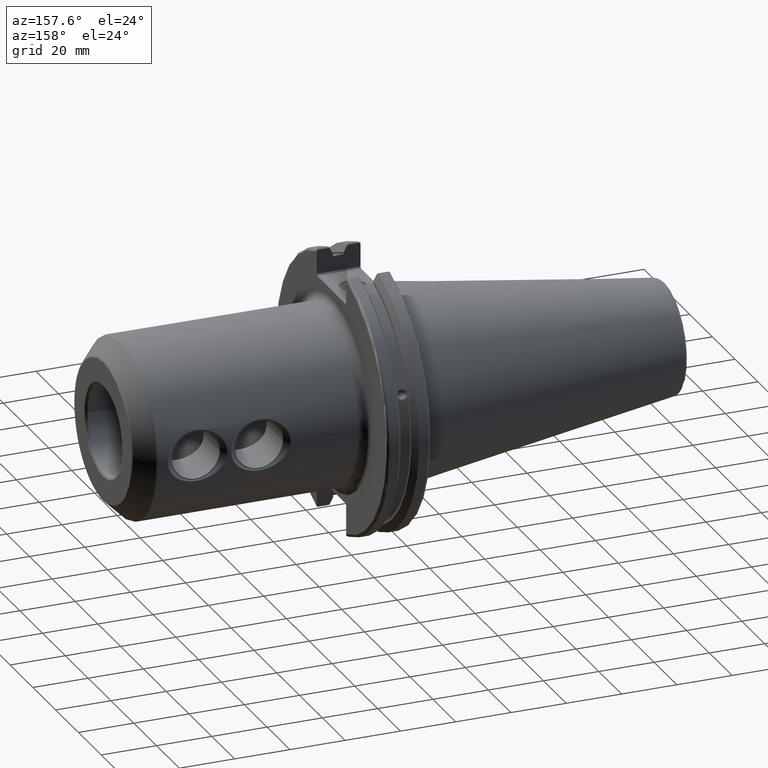
[diagram: clean part render]
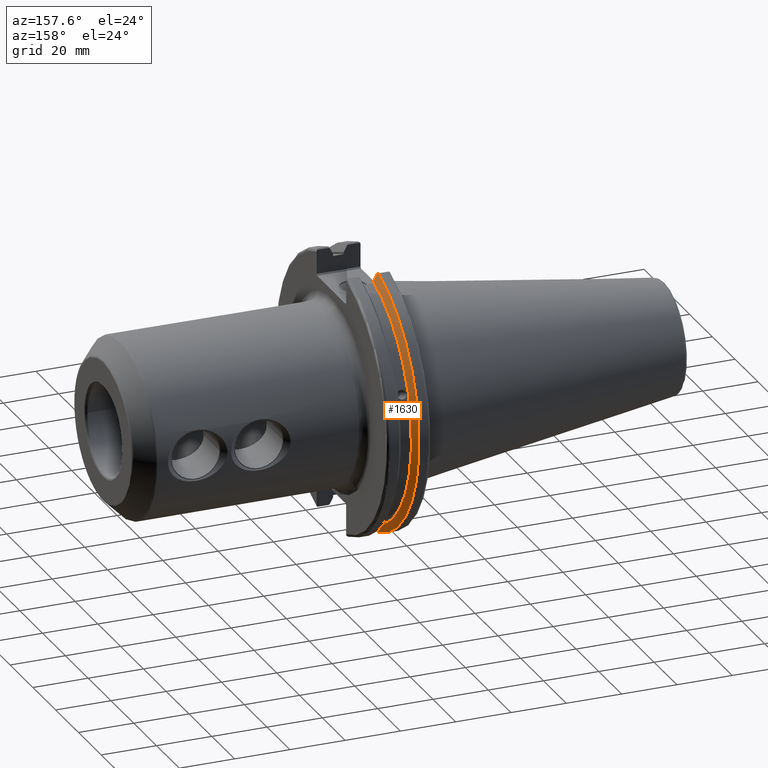
[diagram: same view with one face highlighted and labeled with its STEP entity id]
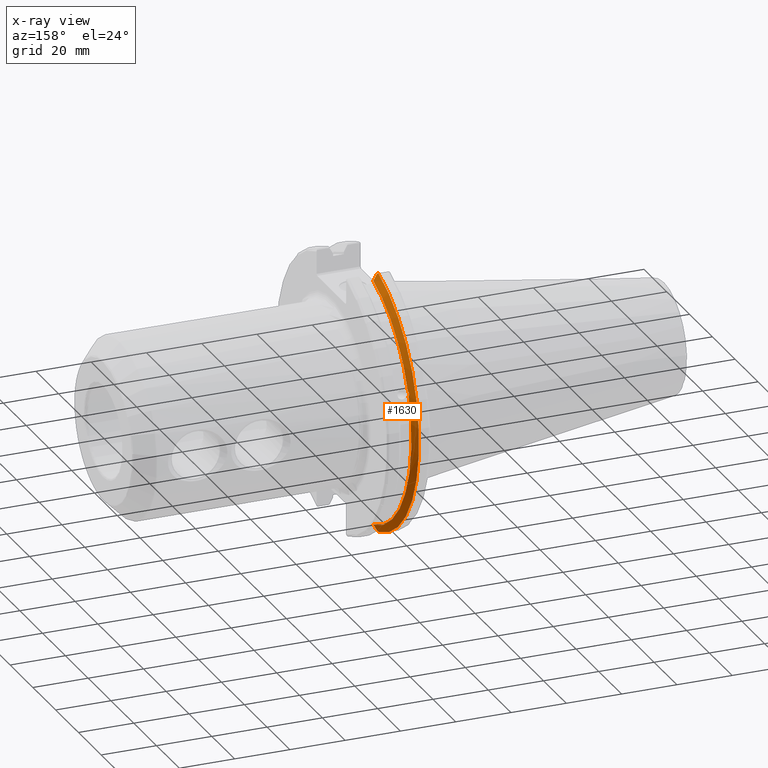
[diagram: x-ray of the same camera — body ghosted, the highlighted face saturated]
A machine part, auxiliary view. The second image highlights one B-rep face of the part: STEP entity #1630.
The next image is the same camera in x-ray: the body ghosted, the highlighted face saturated — about 0% of this face is hidden behind the body in this view.
In plain terms, the highlighted conical surface has half-angle 60 deg.
Its self-contained STEP definition (entity closure, byte-faithful):
#23=(
BOUNDED_CURVE()
B_SPLINE_CURVE(2,(#3157,#3158,#3159),.UNSPECIFIED.,.F.,.F.)
B_SPLINE_CURVE_WITH_KNOTS((3,3),(0.,0.275823910675371),.UNSPECIFIED.)
CURVE()
GEOMETRIC_REPRESENTATION_ITEM()
RATIONAL_B_SPLINE_CURVE((1.,1.00038235575501,1.00012873637129))
REPRESENTATION_ITEM('')
);
#28=(
BOUNDED_CURVE()
B_SPLINE_CURVE(2,(#3299,#3300,#3301),.UNSPECIFIED.,.F.,.F.)
B_SPLINE_CURVE_WITH_KNOTS((3,3),(0.,0.0648240472898098),.UNSPECIFIED.)
CURVE()
GEOMETRIC_REPRESENTATION_ITEM()
RATIONAL_B_SPLINE_CURVE((1.,1.00011477674852,1.00019140645975))
REPRESENTATION_ITEM('')
);
#29=(
BOUNDED_CURVE()
B_SPLINE_CURVE(2,(#3330,#3331,#3332),.UNSPECIFIED.,.F.,.F.)
B_SPLINE_CURVE_WITH_KNOTS((3,3),(0.0558332664507334,0.331657177124507),
 .UNSPECIFIED.)
CURVE()
GEOMETRIC_REPRESENTATION_ITEM()
RATIONAL_B_SPLINE_CURVE((1.00012873636786,1.0003823557448,1.))
REPRESENTATION_ITEM('')
);
#30=(
BOUNDED_CURVE()
B_SPLINE_CURVE(2,(#3347,#3348,#3349),.UNSPECIFIED.,.F.,.F.)
B_SPLINE_CURVE_WITH_KNOTS((3,3),(0.325260944932395,0.390084992222207),
 .UNSPECIFIED.)
CURVE()
GEOMETRIC_REPRESENTATION_ITEM()
RATIONAL_B_SPLINE_CURVE((1.00019140645963,1.00011477674845,1.))
REPRESENTATION_ITEM('')
);
#53=CONICAL_SURFACE('',#1819,47.8172386482472,1.0471975511966);
#200=FACE_OUTER_BOUND('',#315,.T.);
#315=EDGE_LOOP('',(#1465,#1466,#1467,#1468,#1469,#1470,#1471,#1472));
#357=B_SPLINE_CURVE_WITH_KNOTS('',3,(#2970,#2971,#2972,#2973,#2974,#2975,
#2976,#2977,#2978,#2979,#2980,#2981,#2982,#2983),.UNSPECIFIED.,.F.,.F.,
(4,2,2,2,2,2,4),(0.426712868358719,0.441644498666906,0.48031331322313,0.518982127779354,
0.557650942335578,0.596319756891802,0.611251387199987),.UNSPECIFIED.);
#610=CIRCLE('',#1752,46.4219772964944);
#634=CIRCLE('',#1810,49.2125);
#637=CIRCLE('',#1820,46.4219772964944);
#730=VERTEX_POINT('',#2967);
#731=VERTEX_POINT('',#2969);
#743=VERTEX_POINT('',#3044);
#772=VERTEX_POINT('',#3154);
#773=VERTEX_POINT('',#3156);
#794=VERTEX_POINT('',#3297);
#800=VERTEX_POINT('',#3329);
#801=VERTEX_POINT('',#3339);
#917=EDGE_CURVE('',#731,#730,#357,.T.);
#933=EDGE_CURVE('',#731,#743,#610,.T.);
#974=EDGE_CURVE('',#773,#772,#23,.T.);
#1009=EDGE_CURVE('',#794,#772,#28,.T.);
#1023=EDGE_CURVE('',#800,#743,#29,.T.);
#1028=EDGE_CURVE('',#794,#801,#634,.T.);
#1030=EDGE_CURVE('',#800,#801,#30,.T.);
#1035=EDGE_CURVE('',#773,#730,#637,.T.);
#1465=ORIENTED_EDGE('',*,*,#917,.T.);
#1466=ORIENTED_EDGE('',*,*,#1035,.F.);
#1467=ORIENTED_EDGE('',*,*,#974,.T.);
#1468=ORIENTED_EDGE('',*,*,#1009,.F.);
#1469=ORIENTED_EDGE('',*,*,#1028,.T.);
#1470=ORIENTED_EDGE('',*,*,#1030,.F.);
#1471=ORIENTED_EDGE('',*,*,#1023,.T.);
#1472=ORIENTED_EDGE('',*,*,#933,.F.);
#1630=ADVANCED_FACE('',(#200),#53,.T.);
#1752=AXIS2_PLACEMENT_3D('',#3045,#2055,#2056);
#1810=AXIS2_PLACEMENT_3D('',#3341,#2218,#2219);
#1819=AXIS2_PLACEMENT_3D('',#3359,#2239,#2240);
#1820=AXIS2_PLACEMENT_3D('',#3360,#2241,#2242);
#2055=DIRECTION('center_axis',(1.,0.,0.));
#2056=DIRECTION('ref_axis',(0.,0.,-1.));
#2218=DIRECTION('center_axis',(1.,0.,0.));
#2219=DIRECTION('ref_axis',(0.,0.,-1.));
#2239=DIRECTION('center_axis',(-1.,0.,0.));
#2240=DIRECTION('ref_axis',(0.,1.,0.));
#2241=DIRECTION('center_axis',(1.,0.,0.));
#2242=DIRECTION('ref_axis',(0.,0.,-1.));
#2967=CARTESIAN_POINT('',(9.21910000000001,43.9096390749305,15.0646464421033));
#2969=CARTESIAN_POINT('',(9.2191,43.3201030900029,16.684383248648));
#2970=CARTESIAN_POINT('Ctrl Pts',(9.21910000000001,43.3201030900028,16.6843832486479));
#2971=CARTESIAN_POINT('Ctrl Pts',(9.20211843903392,43.361310694134,16.6592273018006));
#2972=CARTESIAN_POINT('Ctrl Pts',(9.18608675403322,43.4012416983557,16.6326763251437));
#2973=CARTESIAN_POINT('Ctrl Pts',(9.13238673845037,43.539103734322,16.5325130832406));
#2974=CARTESIAN_POINT('Ctrl Pts',(9.09621610663555,43.6406982153492,16.4411807953719));
#2975=CARTESIAN_POINT('Ctrl Pts',(9.04690868251975,43.8110833825827,16.2291323464527));
#2976=CARTESIAN_POINT('Ctrl Pts',(9.0341,43.8794096049168,16.10796730316));
#2977=CARTESIAN_POINT('Ctrl Pts',(9.03409999999999,43.9675796948952,15.8657219718732));
#2978=CARTESIAN_POINT('Ctrl Pts',(9.04690868251975,43.9931221605126,15.7289849146254));
#2979=CARTESIAN_POINT('Ctrl Pts',(9.09621610663555,43.9989016655819,15.4570249042867));
#2980=CARTESIAN_POINT('Ctrl Pts',(9.13238673845037,43.9797830409458,15.3217566390708));
#2981=CARTESIAN_POINT('Ctrl Pts',(9.18608675403322,43.9385582852181,15.1564111356409));
#2982=CARTESIAN_POINT('Ctrl Pts',(9.20211843903391,43.9250360001461,15.1104047527575));
#2983=CARTESIAN_POINT('Ctrl Pts',(9.2191,43.9096390749305,15.0646464421033));
#3044=CARTESIAN_POINT('',(9.2191,12.95,44.5791147973604));
#3045=CARTESIAN_POINT('Origin',(9.2191,0.,0.));
#3154=CARTESIAN_POINT('',(7.88638960562424,12.95,-46.9780755322918));
#3156=CARTESIAN_POINT('',(9.2191,12.95,-44.5791147973604));
#3157=CARTESIAN_POINT('Ctrl Pts',(9.2191,12.95,-44.5791147973604));
#3158=CARTESIAN_POINT('Ctrl Pts',(8.57020449055505,12.95,-45.7494966802211));
#3159=CARTESIAN_POINT('Ctrl Pts',(7.88638960562424,12.95,-46.9780755322917));
#3297=CARTESIAN_POINT('',(7.60799096595127,13.4317035994433,-47.3440544806494));
#3299=CARTESIAN_POINT('Ctrl Pts',(7.60799096595127,13.4317035994433,-47.3440544806494));
#3300=CARTESIAN_POINT('Ctrl Pts',(7.74826896663819,13.1896660169966,-47.1601640966264));
#3301=CARTESIAN_POINT('Ctrl Pts',(7.88638960562424,12.95,-46.9780755322918));
#3329=CARTESIAN_POINT('',(7.88638960562424,12.95,46.9780755322918));
#3330=CARTESIAN_POINT('Ctrl Pts',(7.88638960562424,12.95,46.9780755322918));
#3331=CARTESIAN_POINT('Ctrl Pts',(8.57020449054228,12.95,45.7494966802441));
#3332=CARTESIAN_POINT('Ctrl Pts',(9.2191,12.95,44.5791147973604));
#3339=CARTESIAN_POINT('',(7.60799096595127,13.4317035994433,47.3440544806494));
#3341=CARTESIAN_POINT('Origin',(7.60799096595127,0.,0.));
#3347=CARTESIAN_POINT('Ctrl Pts',(7.88638960562424,12.95,46.9780755322918));
#3348=CARTESIAN_POINT('Ctrl Pts',(7.74826896663818,13.1896660169966,47.1601640966265));
#3349=CARTESIAN_POINT('Ctrl Pts',(7.60799096595127,13.4317035994433,47.3440544806494));
#3359=CARTESIAN_POINT('Origin',(8.41354548297563,0.,0.));
#3360=CARTESIAN_POINT('Origin',(9.2191,0.,0.));